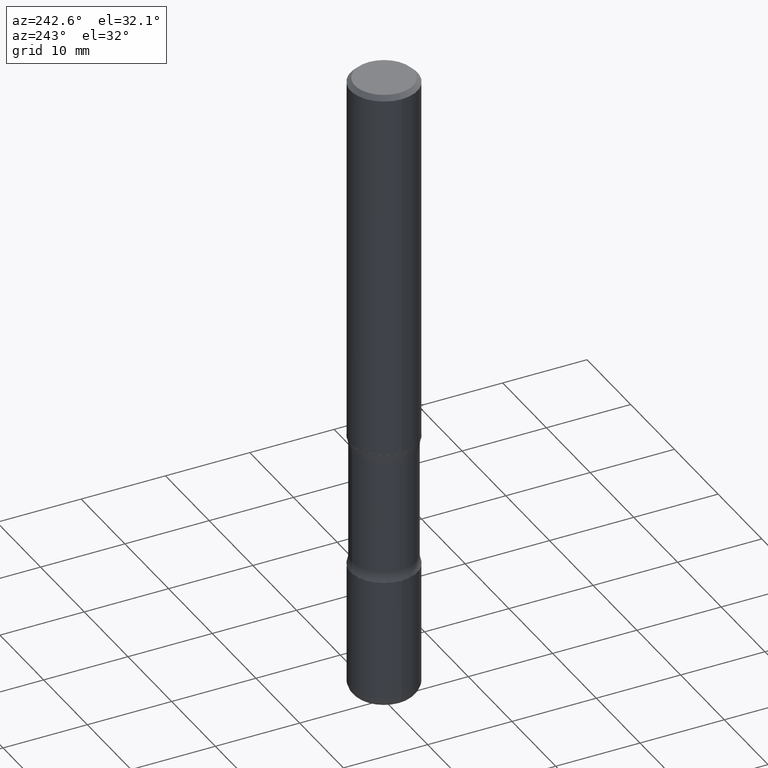
[diagram: clean part render]
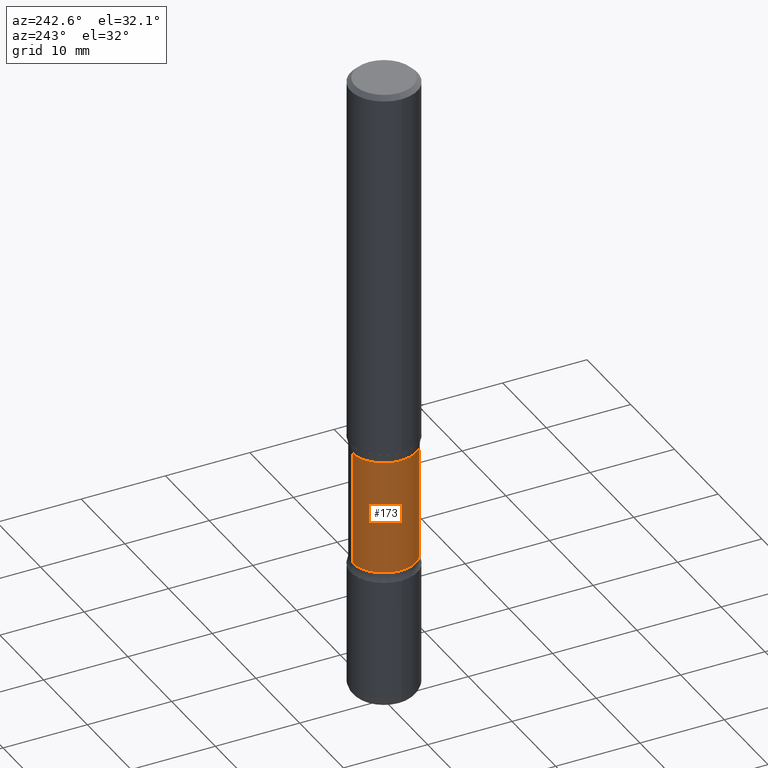
[diagram: same view with one face highlighted and labeled with its STEP entity id]
A machine part, auxiliary view. The second image highlights one B-rep face of the part: STEP entity #173.
In plain terms, the highlighted cylindrical surface (edge-blend (fillet) strip) has radius 3.7703 mm, axis along (0, -0, -1).
Its self-contained STEP definition (entity closure, byte-faithful):
#23 = VERTEX_POINT ( 'NONE', #258 ) ;
#42 = CARTESIAN_POINT ( 'NONE',  ( -1.045153991847964360E-15, -0.1484375000000063560, -1.793498159084609522 ) ) ;
#72 = CARTESIAN_POINT ( 'NONE',  ( -1.045153991847949569E-15, -0.1484375000000081601, -2.331501840915390034 ) ) ;
#91 = DIRECTION ( 'NONE',  ( 2.523926373086038410E-29, -3.379125637513666367E-15, -1.000000000000000000 ) ) ;
#92 = VERTEX_POINT ( 'NONE', #42 ) ;
#94 = EDGE_CURVE ( 'NONE', #244, #23, #408, .T. ) ;
#128 = EDGE_CURVE ( 'NONE', #301, #23, #221, .T. ) ;
#135 = AXIS2_PLACEMENT_3D ( 'NONE', #465, #91, #213 ) ;
#146 = AXIS2_PLACEMENT_3D ( 'NONE', #548, #161, #163 ) ;
#161 = DIRECTION ( 'NONE',  ( 2.523926373086038410E-29, -3.379125637513666367E-15, -1.000000000000000000 ) ) ;
#163 = DIRECTION ( 'NONE',  ( 6.982962677686265133E-15, 1.000000000000000000, -3.680805717779217644E-15 ) ) ;
#165 = AXIS2_PLACEMENT_3D ( 'NONE', #490, #531, #267 ) ;
#173 = ADVANCED_FACE ( 'NONE', ( #219 ), #353, .T. ) ;
#210 = ORIENTED_EDGE ( 'NONE', *, *, #230, .F. ) ;
#213 = DIRECTION ( 'NONE',  ( 6.982962677686265133E-15, 1.000000000000000000, -3.680805717779216855E-15 ) ) ;
#219 = FACE_OUTER_BOUND ( 'NONE', #284, .T. ) ;
#221 = LINE ( 'NONE', #274, #474 ) ;
#230 = EDGE_CURVE ( 'NONE', #92, #244, #403, .T. ) ;
#244 = VERTEX_POINT ( 'NONE', #72 ) ;
#252 = CIRCLE ( 'NONE', #135, 0.1484375000000000278 ) ;
#258 = CARTESIAN_POINT ( 'NONE',  ( 1.036533522469112013E-15, 0.1484374999999918399, -2.331501840915391366 ) ) ;
#267 = DIRECTION ( 'NONE',  ( 6.982962677686266711E-15, 1.000000000000000000, -3.680805717779217644E-15 ) ) ;
#274 = CARTESIAN_POINT ( 'NONE',  ( 1.036533522469128973E-15, 0.1484374999999896194, -3.000000000000000444 ) ) ;
#284 = EDGE_LOOP ( 'NONE', ( #210, #542, #374, #446 ) ) ;
#301 = VERTEX_POINT ( 'NONE', #500 ) ;
#311 = DIRECTION ( 'NONE',  ( 2.523926373086038410E-29, -3.379125637513666367E-15, -1.000000000000000000 ) ) ;
#353 = CYLINDRICAL_SURFACE ( 'NONE', #165, 0.1484375000000000000 ) ;
#367 = EDGE_CURVE ( 'NONE', #92, #301, #252, .T. ) ;
#374 = ORIENTED_EDGE ( 'NONE', *, *, #128, .T. ) ;
#377 = VECTOR ( 'NONE', #547, 39.37007874015748143 ) ;
#403 = LINE ( 'NONE', #456, #377 ) ;
#408 = CIRCLE ( 'NONE', #146, 0.1484375000000000000 ) ;
#446 = ORIENTED_EDGE ( 'NONE', *, *, #94, .F. ) ;
#456 = CARTESIAN_POINT ( 'NONE',  ( -1.018355171544137761E-15, -0.1484375000000104083, -2.999999999999999112 ) ) ;
#465 = CARTESIAN_POINT ( 'NONE',  ( 4.340320582405264943E-29, -6.327300400853882778E-15, -1.793498159084609966 ) ) ;
#474 = VECTOR ( 'NONE', #311, 39.37007874015748143 ) ;
#490 = CARTESIAN_POINT ( 'NONE',  ( 7.385442397868472267E-29, -1.040422170319851125E-14, -2.999999999999999556 ) ) ;
#500 = CARTESIAN_POINT ( 'NONE',  ( 1.036533522469098602E-15, 0.1484374999999936995, -1.793498159084610633 ) ) ;
#531 = DIRECTION ( 'NONE',  ( 2.523926373086038410E-29, -3.379125637513666367E-15, -1.000000000000000000 ) ) ;
#542 = ORIENTED_EDGE ( 'NONE', *, *, #367, .T. ) ;
#547 = DIRECTION ( 'NONE',  ( 2.523926373086038410E-29, -3.379125637513666367E-15, -1.000000000000000000 ) ) ;
#548 = CARTESIAN_POINT ( 'NONE',  ( 5.698202263795362163E-29, -8.145282435205020267E-15, -2.331501840915390478 ) ) ;